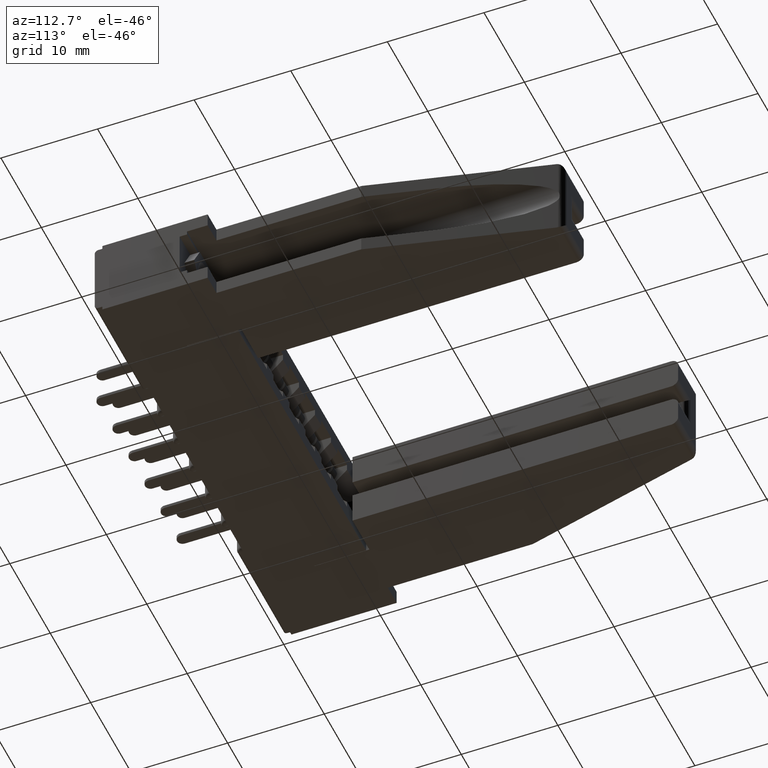
[diagram: clean part render]
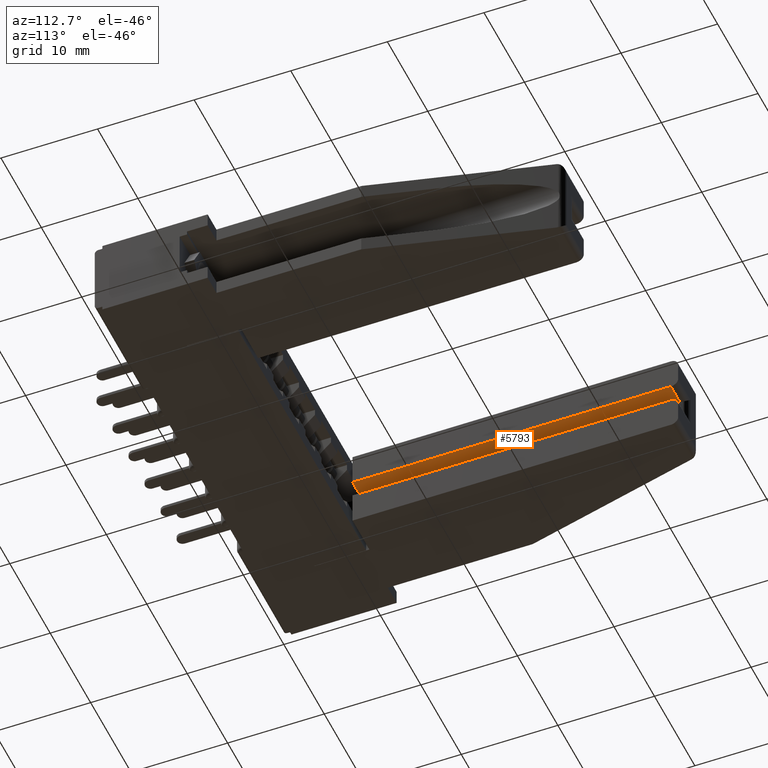
[diagram: same view with one face highlighted and labeled with its STEP entity id]
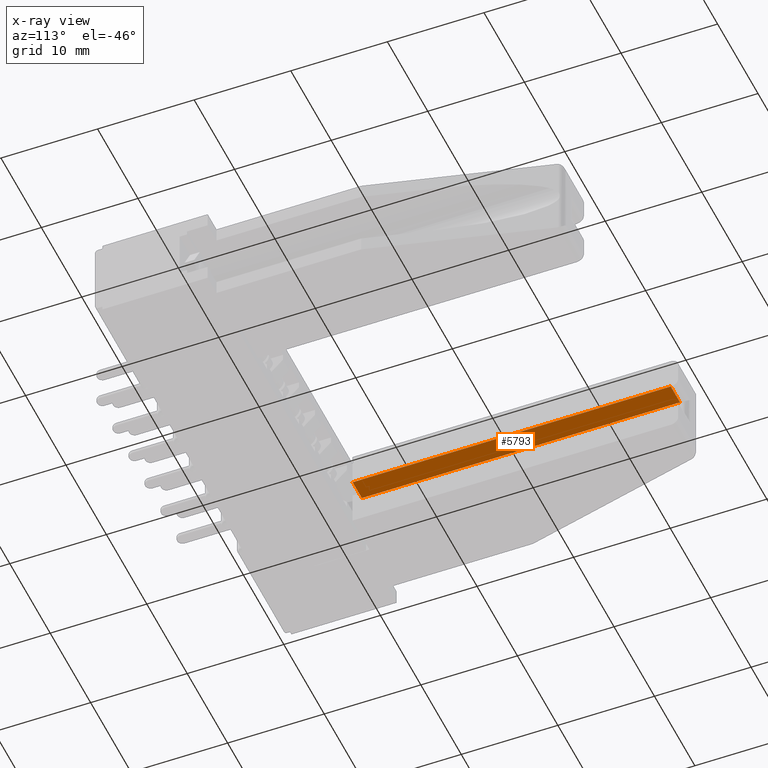
[diagram: x-ray of the same camera — body ghosted, the highlighted face saturated]
A machine part, auxiliary view. The second image highlights one B-rep face of the part: STEP entity #5793.
The next image is the same camera in x-ray: the body ghosted, the highlighted face saturated — about 0% of this face is hidden behind the body in this view.
In plain terms, the highlighted planar face has unit normal (-0, -0, 1).
Its self-contained STEP definition (entity closure, byte-faithful):
#22 = VERTEX_POINT ( 'NONE', #10563 ) ;
#886 = EDGE_CURVE ( 'NONE', #2436, #3815, #12402, .T. ) ;
#893 = DIRECTION ( 'NONE',  ( 1.000000000000000000, 0.0000000000000000000, 3.278893948309973300E-033 ) ) ;
#1515 = VECTOR ( 'NONE', #10937, 39.37007874015748100 ) ;
#2048 = DIRECTION ( 'NONE',  ( -5.146661630867112300E-017, -1.000000000000000000, -6.433327038583891200E-017 ) ) ;
#2374 = VECTOR ( 'NONE', #2048, 39.37007874015748100 ) ;
#2436 = VERTEX_POINT ( 'NONE', #3096 ) ;
#2533 = VERTEX_POINT ( 'NONE', #7404 ) ;
#2576 = ORIENTED_EDGE ( 'NONE', *, *, #886, .F. ) ;
#2680 = LINE ( 'NONE', #12197, #2374 ) ;
#3096 = CARTESIAN_POINT ( 'NONE',  ( 0.3710000000000000000, 0.2230000000000000300, -0.1360000000000000100 ) ) ;
#3815 = VERTEX_POINT ( 'NONE', #8954 ) ;
#4304 = ORIENTED_EDGE ( 'NONE', *, *, #10531, .T. ) ;
#5443 = CARTESIAN_POINT ( 'NONE',  ( 0.3710000000000000000, 0.2230000000000000300, -0.1360000000000001200 ) ) ;
#5793 = ADVANCED_FACE ( 'NONE', ( #12257 ), #8504, .F. ) ;
#5968 = VECTOR ( 'NONE', #893, 39.37007874015748100 ) ;
#6207 = VECTOR ( 'NONE', #7867, 39.37007874015748100 ) ;
#6306 = AXIS2_PLACEMENT_3D ( 'NONE', #5443, #7546, #10567 ) ;
#7108 = ORIENTED_EDGE ( 'NONE', *, *, #8427, .T. ) ;
#7404 = CARTESIAN_POINT ( 'NONE',  ( 0.3710000000000001100, 1.519999999999999600, -0.1360000000000000400 ) ) ;
#7546 = DIRECTION ( 'NONE',  ( -3.278893948309973300E-033, -6.433327038583891200E-017, 1.000000000000000000 ) ) ;
#7867 = DIRECTION ( 'NONE',  ( -5.146661630867112300E-017, -1.000000000000000000, -6.433327038583891200E-017 ) ) ;
#8184 = CARTESIAN_POINT ( 'NONE',  ( 0.4610000000000000800, 1.520000000000000200, -0.1360000000000000400 ) ) ;
#8427 = EDGE_CURVE ( 'NONE', #2533, #22, #11408, .T. ) ;
#8504 = PLANE ( 'NONE',  #6306 ) ;
#8954 = CARTESIAN_POINT ( 'NONE',  ( 0.4610000000000000200, 0.2230000000000000300, -0.1360000000000001200 ) ) ;
#9915 = CARTESIAN_POINT ( 'NONE',  ( 0.3710000000000000000, 0.2230000000000000300, -0.1360000000000001200 ) ) ;
#10531 = EDGE_CURVE ( 'NONE', #22, #3815, #2680, .T. ) ;
#10563 = CARTESIAN_POINT ( 'NONE',  ( 0.4610000000000000800, 1.519999999999999600, -0.1360000000000000400 ) ) ;
#10567 = DIRECTION ( 'NONE',  ( 0.0000000000000000000, -1.000000000000000000, -6.433327038583891200E-017 ) ) ;
#10937 = DIRECTION ( 'NONE',  ( 1.000000000000000000, -5.096731331463176700E-017, -0.0000000000000000000 ) ) ;
#11312 = LINE ( 'NONE', #11836, #6207 ) ;
#11408 = LINE ( 'NONE', #8184, #5968 ) ;
#11503 = EDGE_LOOP ( 'NONE', ( #13080, #7108, #4304, #2576 ) ) ;
#11836 = CARTESIAN_POINT ( 'NONE',  ( 0.3710000000000000000, 0.2230000000000000300, -0.1360000000000001200 ) ) ;
#12197 = CARTESIAN_POINT ( 'NONE',  ( 0.4610000000000000200, 0.2230000000000000300, -0.1360000000000001200 ) ) ;
#12257 = FACE_OUTER_BOUND ( 'NONE', #11503, .T. ) ;
#12402 = LINE ( 'NONE', #9915, #1515 ) ;
#13080 = ORIENTED_EDGE ( 'NONE', *, *, #13217, .F. ) ;
#13217 = EDGE_CURVE ( 'NONE', #2533, #2436, #11312, .T. ) ;